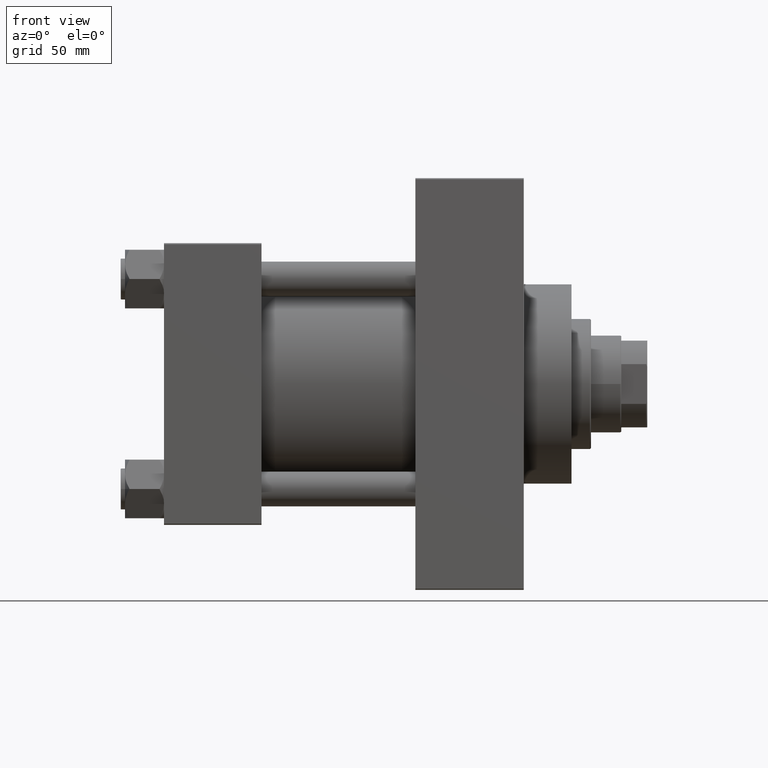
[diagram: clean part render]
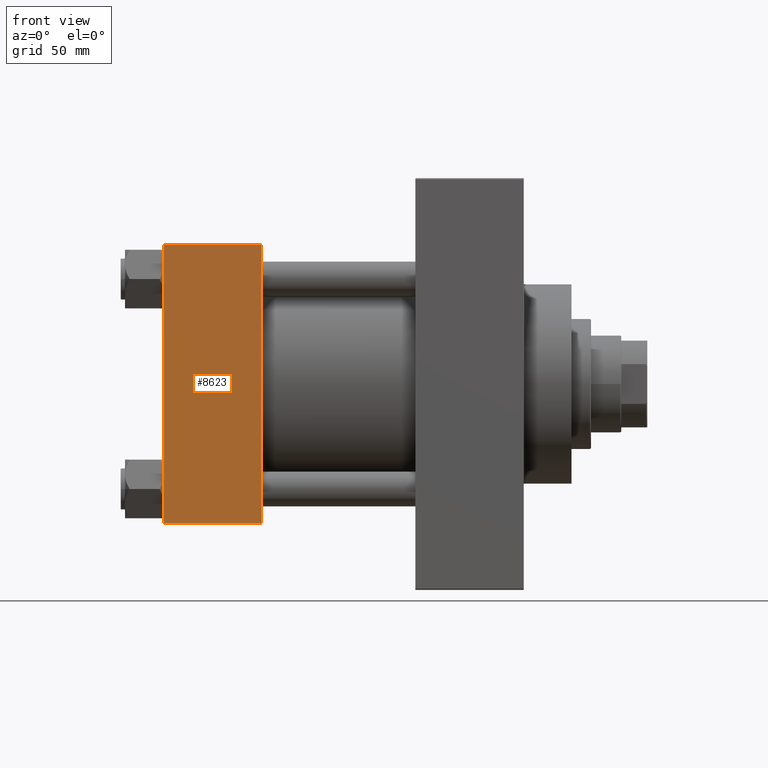
[diagram: same view with one face highlighted and labeled with its STEP entity id]
A machine part, front view. The second image highlights one B-rep face of the part: STEP entity #8623.
In plain terms, the highlighted planar face has unit normal (0, 1, 0).
Its self-contained STEP definition (entity closure, byte-faithful):
#115 = DIRECTION ( 'NONE',  ( 0.000000000000000000, 0.000000000000000000, -1.000000000000000000 ) ) ;
#505 = CARTESIAN_POINT ( 'NONE',  ( 45.00000000000000000, -65.00000000000000000, 64.50000000000000000 ) ) ;
#598 = DIRECTION ( 'NONE',  ( 1.000000000000000000, 0.000000000000000000, 0.000000000000000000 ) ) ;
#756 = CARTESIAN_POINT ( 'NONE',  ( 45.00000000000000000, -65.00000000000000000, 65.00000000000000000 ) ) ;
#4443 = AXIS2_PLACEMENT_3D ( 'NONE', #756, #18265, #6649 ) ;
#4969 = ORIENTED_EDGE ( 'NONE', *, *, #26917, .T. ) ;
#5286 = VERTEX_POINT ( 'NONE', #505 ) ;
#6649 = DIRECTION ( 'NONE',  ( 0.000000000000000000, -0.000000000000000000, 1.000000000000000000 ) ) ;
#6711 = VECTOR ( 'NONE', #598, 1000.000000000000000 ) ;
#7919 = CARTESIAN_POINT ( 'NONE',  ( 45.00000000000000000, -65.00000000000000000, -64.49999999999991473 ) ) ;
#8391 = LINE ( 'NONE', #7919, #6711 ) ;
#8481 = DIRECTION ( 'NONE',  ( -1.000000000000000000, 0.000000000000000000, 0.000000000000000000 ) ) ;
#8623 = ADVANCED_FACE ( 'NONE', ( #41915 ), #29599, .F. ) ;
#9940 = EDGE_LOOP ( 'NONE', ( #4969, #27232, #36781, #11126 ) ) ;
#11126 = ORIENTED_EDGE ( 'NONE', *, *, #30690, .T. ) ;
#11639 = VECTOR ( 'NONE', #12932, 1000.000000000000000 ) ;
#11937 = LINE ( 'NONE', #16207, #11639 ) ;
#12932 = DIRECTION ( 'NONE',  ( 0.000000000000000000, 0.000000000000000000, -1.000000000000000000 ) ) ;
#16207 = CARTESIAN_POINT ( 'NONE',  ( 0.000000000000000000, -65.00000000000000000, 65.00000000000000000 ) ) ;
#18265 = DIRECTION ( 'NONE',  ( -0.000000000000000000, 1.000000000000000000, 0.000000000000000000 ) ) ;
#18944 = CARTESIAN_POINT ( 'NONE',  ( 0.000000000000000000, -65.00000000000000000, 64.50000000000000000 ) ) ;
#19045 = LINE ( 'NONE', #49238, #19416 ) ;
#19416 = VECTOR ( 'NONE', #115, 1000.000000000000000 ) ;
#20903 = EDGE_CURVE ( 'NONE', #45235, #27998, #8391, .T. ) ;
#26917 = EDGE_CURVE ( 'NONE', #30298, #45235, #11937, .T. ) ;
#27232 = ORIENTED_EDGE ( 'NONE', *, *, #20903, .T. ) ;
#27640 = LINE ( 'NONE', #46270, #35906 ) ;
#27998 = VERTEX_POINT ( 'NONE', #47946 ) ;
#29599 = PLANE ( 'NONE',  #4443 ) ;
#30298 = VERTEX_POINT ( 'NONE', #18944 ) ;
#30690 = EDGE_CURVE ( 'NONE', #5286, #30298, #27640, .T. ) ;
#35906 = VECTOR ( 'NONE', #8481, 1000.000000000000000 ) ;
#36781 = ORIENTED_EDGE ( 'NONE', *, *, #47272, .F. ) ;
#41915 = FACE_OUTER_BOUND ( 'NONE', #9940, .T. ) ;
#45235 = VERTEX_POINT ( 'NONE', #47533 ) ;
#46270 = CARTESIAN_POINT ( 'NONE',  ( 45.00000000000000000, -65.00000000000000000, 64.50000000000000000 ) ) ;
#47272 = EDGE_CURVE ( 'NONE', #5286, #27998, #19045, .T. ) ;
#47533 = CARTESIAN_POINT ( 'NONE',  ( 0.000000000000000000, -65.00000000000000000, -64.49999999999991473 ) ) ;
#47946 = CARTESIAN_POINT ( 'NONE',  ( 45.00000000000000000, -65.00000000000000000, -64.49999999999991473 ) ) ;
#49238 = CARTESIAN_POINT ( 'NONE',  ( 45.00000000000000000, -65.00000000000000000, 65.00000000000000000 ) ) ;